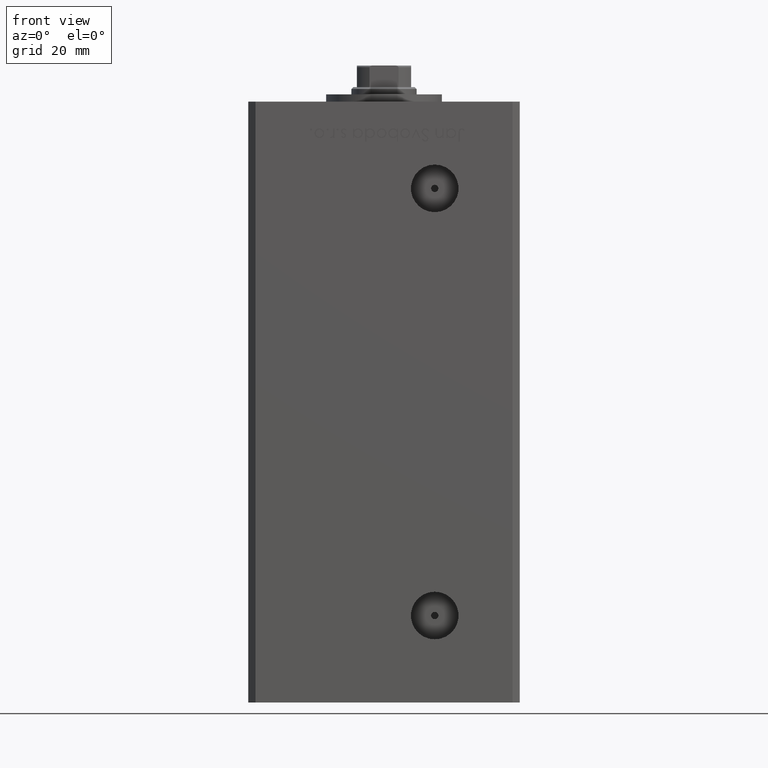
[diagram: clean part render]
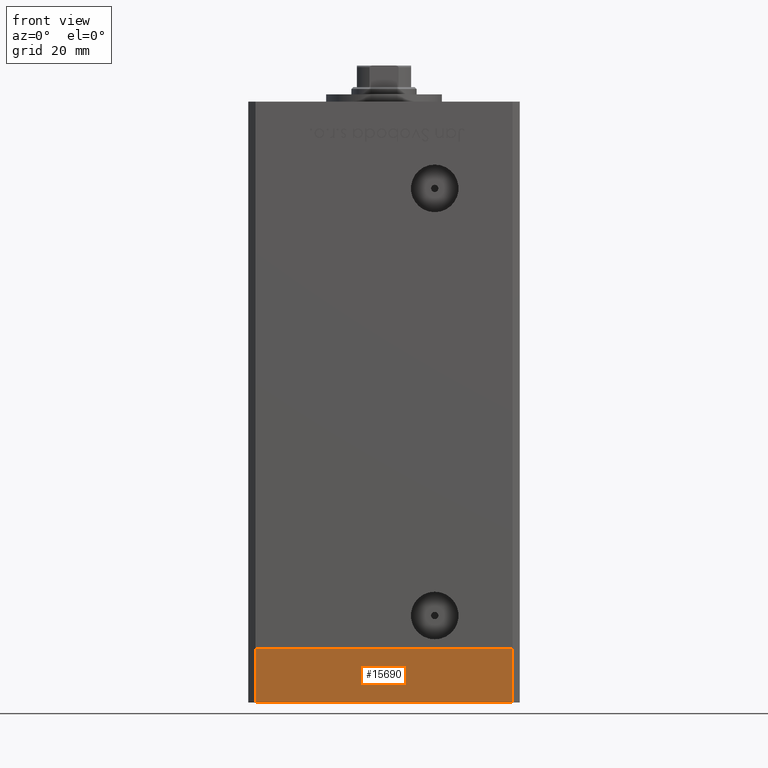
[diagram: same view with one face highlighted and labeled with its STEP entity id]
A machine part, front view. The second image highlights one B-rep face of the part: STEP entity #15690.
In plain terms, the highlighted planar face has unit normal (-0, -1, -0).
Its self-contained STEP definition (entity closure, byte-faithful):
#3862 = VERTEX_POINT ( 'NONE', #40504 ) ;
#3899 = PLANE ( 'NONE',  #36590 ) ;
#4160 = DIRECTION ( 'NONE',  ( 9.773090005503140331E-17, -1.000000000000000000, 0.000000000000000000 ) ) ;
#4409 = VECTOR ( 'NONE', #15065, 1000.000000000000000 ) ;
#5832 = EDGE_CURVE ( 'NONE', #6700, #50993, #35132, .T. ) ;
#6700 = VERTEX_POINT ( 'NONE', #48032 ) ;
#6952 = CARTESIAN_POINT ( 'NONE',  ( -35.49999999999998579, -32.50000000000001421, 0.000000000000000000 ) ) ;
#8251 = EDGE_LOOP ( 'NONE', ( #49881, #45927, #42210, #31603 ) ) ;
#9121 = DIRECTION ( 'NONE',  ( 0.000000000000000000, 0.000000000000000000, 1.000000000000000000 ) ) ;
#9468 = EDGE_CURVE ( 'NONE', #50993, #3862, #19857, .T. ) ;
#11675 = DIRECTION ( 'NONE',  ( 1.000000000000000000, 9.773090005503140331E-17, 0.000000000000000000 ) ) ;
#12082 = CARTESIAN_POINT ( 'NONE',  ( -35.49999999999998579, -32.50000000000001421, -15.00000000000000000 ) ) ;
#15065 = DIRECTION ( 'NONE',  ( 0.000000000000000000, 0.000000000000000000, 1.000000000000000000 ) ) ;
#15690 = ADVANCED_FACE ( 'NONE', ( #40582 ), #3899, .T. ) ;
#19857 = LINE ( 'NONE', #39916, #28816 ) ;
#20859 = VECTOR ( 'NONE', #50393, 1000.000000000000000 ) ;
#23283 = EDGE_CURVE ( 'NONE', #38104, #3862, #45800, .T. ) ;
#24514 = EDGE_CURVE ( 'NONE', #6700, #38104, #33519, .T. ) ;
#28816 = VECTOR ( 'NONE', #11675, 1000.000000000000000 ) ;
#28910 = CARTESIAN_POINT ( 'NONE',  ( 35.50000000000000711, -32.50000000000000711, -15.00000000000000000 ) ) ;
#31603 = ORIENTED_EDGE ( 'NONE', *, *, #23283, .T. ) ;
#33519 = LINE ( 'NONE', #41676, #20859 ) ;
#35132 = LINE ( 'NONE', #42782, #4409 ) ;
#36590 = AXIS2_PLACEMENT_3D ( 'NONE', #12082, #4160, #40062 ) ;
#37690 = VECTOR ( 'NONE', #9121, 1000.000000000000000 ) ;
#38104 = VERTEX_POINT ( 'NONE', #47585 ) ;
#39916 = CARTESIAN_POINT ( 'NONE',  ( -35.49999999999998579, -32.50000000000001421, 0.000000000000000000 ) ) ;
#40062 = DIRECTION ( 'NONE',  ( 1.000000000000000000, 9.773090005503140331E-17, 0.000000000000000000 ) ) ;
#40504 = CARTESIAN_POINT ( 'NONE',  ( 35.50000000000000711, -32.50000000000000711, 0.000000000000000000 ) ) ;
#40582 = FACE_OUTER_BOUND ( 'NONE', #8251, .T. ) ;
#41676 = CARTESIAN_POINT ( 'NONE',  ( -35.49999999999998579, -32.50000000000001421, -15.00000000000000000 ) ) ;
#42210 = ORIENTED_EDGE ( 'NONE', *, *, #24514, .T. ) ;
#42782 = CARTESIAN_POINT ( 'NONE',  ( -35.49999999999998579, -32.50000000000001421, -15.00000000000000000 ) ) ;
#45800 = LINE ( 'NONE', #28910, #37690 ) ;
#45927 = ORIENTED_EDGE ( 'NONE', *, *, #5832, .F. ) ;
#47585 = CARTESIAN_POINT ( 'NONE',  ( 35.50000000000000711, -32.50000000000000711, -15.00000000000000000 ) ) ;
#48032 = CARTESIAN_POINT ( 'NONE',  ( -35.49999999999998579, -32.50000000000001421, -15.00000000000000000 ) ) ;
#49881 = ORIENTED_EDGE ( 'NONE', *, *, #9468, .F. ) ;
#50393 = DIRECTION ( 'NONE',  ( 1.000000000000000000, 9.773090005503140331E-17, 0.000000000000000000 ) ) ;
#50993 = VERTEX_POINT ( 'NONE', #6952 ) ;